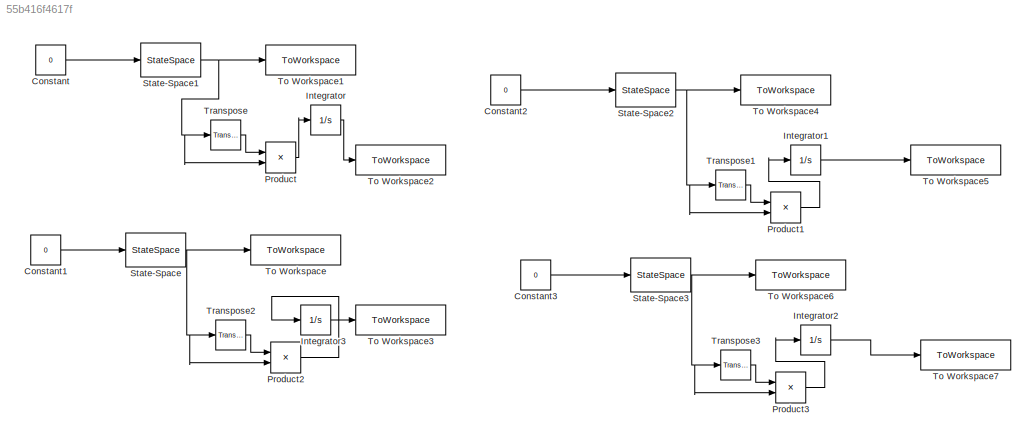
MODEL slx_55b416f4617f
KIND model
CONFIG AbsTol = auto
CONFIG EnableMultiTasking = off
CONFIG FixedStep = auto
CONFIG MaxStep = auto
CONFIG MinStep = auto
CONFIG RelTol = 1e-3
CONFIG SampleTimeConstraint = Unconstrained
CONFIG SolverName = VariableStepAuto
CONFIG StartTime = 0.0
CONFIG StopTime = 10
BLOCK [Constant] Constant
  Value = 0
BLOCK [Constant] Constant1
  Value = 0
BLOCK [Constant] Constant2
  Value = 0
BLOCK [Constant] Constant3
  Value = 0
BLOCK [Integrator] Integrator
  Ports = [1, 1]
BLOCK [Integrator] Integrator1
  Ports = [1, 1]
BLOCK [Integrator] Integrator2
  Ports = [1, 1]
BLOCK [Integrator] Integrator3
  Ports = [1, 1]
BLOCK [Product] Product
  Multiplication = Matrix(*)
  Ports = [2, 1]
BLOCK [Product] Product1
  Multiplication = Matrix(*)
  Ports = [2, 1]
BLOCK [Product] Product2
  Multiplication = Matrix(*)
  Ports = [2, 1]
BLOCK [Product] Product3
  Multiplication = Matrix(*)
  Ports = [2, 1]
BLOCK [StateSpace] State-Space
  A = A
  B = B
  C = C
  D = [0; 0]
  InitialCondition = x4
  ParameterTunability = Optimized
  Ports = [1, 1]
BLOCK [StateSpace] State-Space1
  A = A
  B = B
  C = C
  D = [0; 0]
  InitialCondition = x2
  Ports = [1, 1]
BLOCK [StateSpace] State-Space2
  A = A
  B = B
  C = C
  D = [0; 0]
  InitialCondition = x1
  Ports = [1, 1]
BLOCK [StateSpace] State-Space3
  A = A
  B = B
  C = C
  D = [0; 0]
  InitialCondition = x3
  ParameterTunability = Unconstrained
  Ports = [1, 1]
BLOCK [ToWorkspace] To Workspace
  FixptAsFi = on
  MaxDataPoints = inf
  Ports = [1]
  SampleTime = 0.0005
  SaveFormat = Timeseries
  VariableName = y4
BLOCK [ToWorkspace] To Workspace1
  FixptAsFi = on
  MaxDataPoints = inf
  Ports = [1]
  SampleTime = 0.0005
  SaveFormat = Timeseries
  VariableName = y2
BLOCK [ToWorkspace] To Workspace2
  FixptAsFi = on
  MaxDataPoints = inf
  Ports = [1]
  SampleTime = 0.0005
  SaveFormat = Timeseries
  VariableName = f2
BLOCK [ToWorkspace] To Workspace3
  FixptAsFi = on
  MaxDataPoints = inf
  Ports = [1]
  SampleTime = 0.0005
  SaveFormat = Timeseries
  VariableName = f4
BLOCK [ToWorkspace] To Workspace4
  FixptAsFi = on
  MaxDataPoints = inf
  Ports = [1]
  SampleTime = 0.0005
  SaveFormat = Timeseries
  VariableName = y1
BLOCK [ToWorkspace] To Workspace5
  FixptAsFi = on
  MaxDataPoints = inf
  Ports = [1]
  SampleTime = 0.0005
  SaveFormat = Timeseries
  VariableName = f1
BLOCK [ToWorkspace] To Workspace6
  FixptAsFi = on
  MaxDataPoints = inf
  Ports = [1]
  SampleTime = 0.0005
  SaveFormat = Timeseries
  VariableName = y3
BLOCK [ToWorkspace] To Workspace7
  FixptAsFi = on
  MaxDataPoints = inf
  Ports = [1]
  SampleTime = 0.0005
  SaveFormat = Timeseries
  VariableName = f3
BLOCK [Reference] Transpose  REF=matrix_library/Transpose
  Ports = [1, 1]
  SourceBlock = matrix_library/Transpose
  SourceProductBaseCode = SL
  SourceType = Transpose
BLOCK [Reference] Transpose1  REF=matrix_library/Transpose
  Ports = [1, 1]
  SourceBlock = matrix_library/Transpose
  SourceProductBaseCode = SL
  SourceType = Transpose
BLOCK [Reference] Transpose2  REF=matrix_library/Transpose
  Ports = [1, 1]
  SourceBlock = matrix_library/Transpose
  SourceProductBaseCode = SL
  SourceType = Transpose
BLOCK [Reference] Transpose3  REF=matrix_library/Transpose
  Ports = [1, 1]
  SourceBlock = matrix_library/Transpose
  SourceProductBaseCode = SL
  SourceType = Transpose
LINE Constant1:1 -> State-Space:1
LINE Constant2:1 -> State-Space2:1
LINE Constant3:1 -> State-Space3:1
LINE Constant:1 -> State-Space1:1
LINE Integrator1:1 -> To Workspace5:1
LINE Integrator2:1 -> To Workspace7:1
LINE Integrator3:1 -> To Workspace3:1
LINE Integrator:1 -> To Workspace2:1
LINE Product1:1 -> Integrator1:1
LINE Product2:1 -> Integrator3:1
LINE Product3:1 -> Integrator2:1
LINE Product:1 -> Integrator:1
NET State-Space1:1 -> Product:2, To Workspace1:1, Transpose:1
NET State-Space2:1 -> Product1:2, To Workspace4:1, Transpose1:1
NET State-Space3:1 -> Product3:2, To Workspace6:1, Transpose3:1
NET State-Space:1 -> Product2:2, To Workspace:1, Transpose2:1
LINE Transpose1:1 -> Product1:1
LINE Transpose2:1 -> Product2:1
LINE Transpose3:1 -> Product3:1
LINE Transpose:1 -> Product:1
note: NET lines group one-source signal fan-out (src -> all destinations, sorted); 1:1 wires keep LINE
